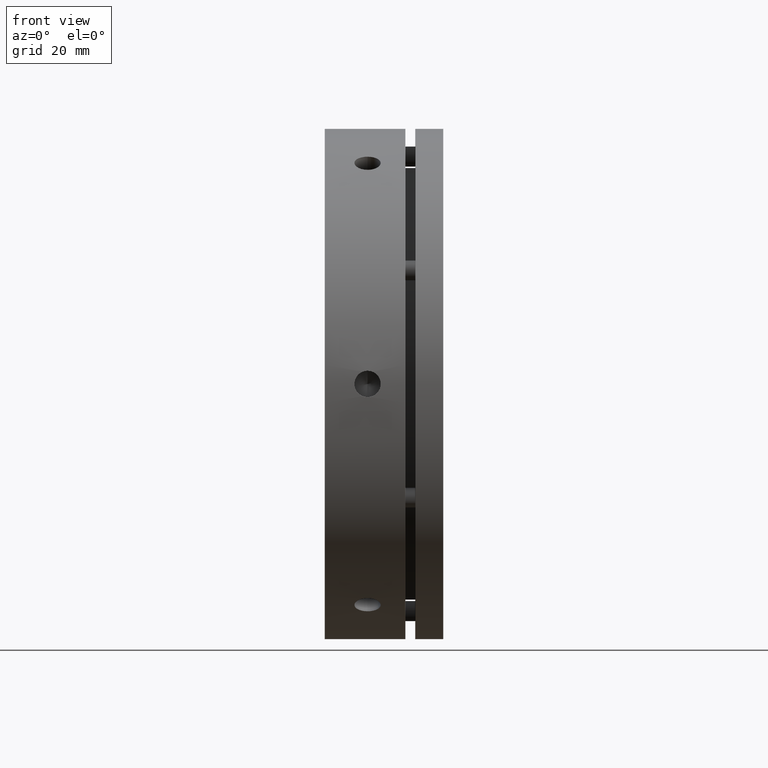
[diagram: clean part render]
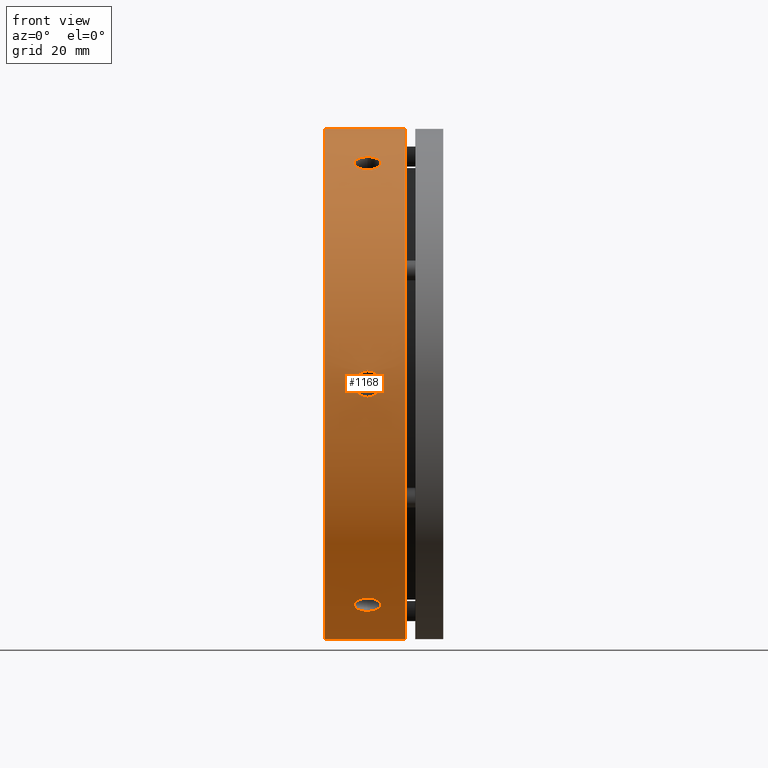
[diagram: same view with one face highlighted and labeled with its STEP entity id]
A machine part, front view. The second image highlights one B-rep face of the part: STEP entity #1168.
In plain terms, the highlighted cylindrical surface (partial cylindrical patch) has radius 77.5 mm, axis along (1, 0, 0).
Its self-contained STEP definition (entity closure, byte-faithful):
#1168 = ADVANCED_FACE ( 'NONE', ( #1421, #1425, #1422, #1424 ), #1429, .T. ) ;
#1198 = AXIS2_PLACEMENT_3D ( 'NONE', #2739, #2740, #2741 ) ;
#1217 = AXIS2_PLACEMENT_3D ( 'NONE', #2637, #2638, #2639 ) ;
#1421 = FACE_OUTER_BOUND ( 'NONE', #3070, .T. ) ;
#1422 = FACE_BOUND ( 'NONE', #3060, .T. ) ;
#1424 = FACE_BOUND ( 'NONE', #3059, .T. ) ;
#1425 = FACE_BOUND ( 'NONE', #3072, .T. ) ;
#1429 = CYLINDRICAL_SURFACE ( 'NONE', #3290, 77.50000000000000000 ) ;
#1465 = LINE ( 'NONE', #2215, #1471 ) ;
#1471 = VECTOR ( 'NONE', #2220, 1000.000000000000000 ) ;
#1488 = LINE ( 'NONE', #2416, #1493 ) ;
#1493 = VECTOR ( 'NONE', #2423, 1000.000000000000000 ) ;
#1564 = CIRCLE ( 'NONE', #1217, 77.50000000000000000 ) ;
#1566 = CIRCLE ( 'NONE', #1198, 77.50000000000000000 ) ;
#2116 = CARTESIAN_POINT ( 'NONE',  ( 17.99999999999997900, 0.0000000000000000000, 0.0000000000000000000 ) ) ;
#2119 = DIRECTION ( 'NONE',  ( 0.0000000000000000000, 0.0000000000000000000, -1.000000000000000000 ) ) ;
#2120 = DIRECTION ( 'NONE',  ( 1.000000000000000000, 0.0000000000000000000, 0.0000000000000000000 ) ) ;
#2215 = CARTESIAN_POINT ( 'NONE',  ( 17.99999999999997900, 9.491012693391988200E-015, 77.50000000000000000 ) ) ;
#2220 = DIRECTION ( 'NONE',  ( 1.000000000000000000, 0.0000000000000000000, 0.0000000000000000000 ) ) ;
#2231 = CARTESIAN_POINT ( 'NONE',  ( 12.47412065452672500, -42.14052723854261000, 65.04174495537171200 ) ) ;
#2265 = CARTESIAN_POINT ( 'NONE',  ( 12.73910725311317700, -42.16245429325571300, 65.02751300771946300 ) ) ;
#2266 = CARTESIAN_POINT ( 'NONE',  ( 12.99999999999998200, -42.16245429325569900, 65.02751300771946300 ) ) ;
#2267 = CARTESIAN_POINT ( 'NONE',  ( 11.96120104487790700, -42.05452945021988900, 65.09738224769535000 ) ) ;
#2268 = CARTESIAN_POINT ( 'NONE',  ( 11.71189815092687400, -41.99093682804811300, 65.13847784417997400 ) ) ;
#2269 = CARTESIAN_POINT ( 'NONE',  ( 11.22768725355467700, -41.82209665323108500, 65.24700991678970800 ) ) ;
#2270 = CARTESIAN_POINT ( 'NONE',  ( 10.99356871442679800, -41.71646571170560200, 65.31468060239170400 ) ) ;
#2271 = CARTESIAN_POINT ( 'NONE',  ( 10.56029209091833300, -41.47183721612002900, 65.47028128538927700 ) ) ;
#2272 = CARTESIAN_POINT ( 'NONE',  ( 10.35833856992959700, -41.33199958152867700, 65.55875766365960500 ) ) ;
#2273 = CARTESIAN_POINT ( 'NONE',  ( 9.984959030223775400, -41.01547853232911200, 65.75724611458409200 ) ) ;
#2274 = CARTESIAN_POINT ( 'NONE',  ( 9.819319480759283200, -40.84361562409804900, 65.86422407303078300 ) ) ;
#2275 = CARTESIAN_POINT ( 'NONE',  ( 9.529759583632852600, -40.47468513258463900, 66.09157899013767700 ) ) ;
#2276 = CARTESIAN_POINT ( 'NONE',  ( 9.404604368545422600, -40.27512322457941700, 66.21346687299693200 ) ) ;
#2277 = CARTESIAN_POINT ( 'NONE',  ( 9.203931984841025500, -39.86018327224135800, 66.46408455398938000 ) ) ;
#2278 = CARTESIAN_POINT ( 'NONE',  ( 9.128348040327731300, -39.64614686218604300, 66.59203194076835100 ) ) ;
#2279 = CARTESIAN_POINT ( 'NONE',  ( 9.026137293761465200, -39.20486780792430900, 66.85277869454282000 ) ) ;
#2280 = CARTESIAN_POINT ( 'NONE',  ( 8.999817849515819600, -38.97645149207274800, 66.98623781908865700 ) ) ;
#2281 = CARTESIAN_POINT ( 'NONE',  ( 9.000184071176754200, -38.51874759296578100, 67.25047146257632800 ) ) ;
#2282 = CARTESIAN_POINT ( 'NONE',  ( 9.026292328376989400, -38.29305101069692100, 67.37920728431235800 ) ) ;
#2283 = CARTESIAN_POINT ( 'NONE',  ( 9.128250717421305900, -37.84778560907653900, 67.63032200470102900 ) ) ;
#2284 = CARTESIAN_POINT ( 'NONE',  ( 9.205344744883037200, -37.62588529797396600, 67.75397689410048900 ) ) ;
#2285 = CARTESIAN_POINT ( 'NONE',  ( 9.406414312444670900, -37.20178408269380600, 67.98776279954525100 ) ) ;
#2286 = CARTESIAN_POINT ( 'NONE',  ( 9.529410230707839000, -37.00007881068615500, 68.09766090727639200 ) ) ;
#2287 = CARTESIAN_POINT ( 'NONE',  ( 9.819941704225797700, -36.61748908413062500, 68.30414882137805000 ) ) ;
#2288 = CARTESIAN_POINT ( 'NONE',  ( 9.988974339206890800, -36.43593884176203800, 68.40107003988008200 ) ) ;
#2289 = CARTESIAN_POINT ( 'NONE',  ( 10.35814702005683700, -36.10993844195761700, 68.57372942752373000 ) ) ;
#2290 = CARTESIAN_POINT ( 'NONE',  ( 10.55957674087922400, -35.96332034873422100, 68.65064433155392000 ) ) ;
#2291 = CARTESIAN_POINT ( 'NONE',  ( 10.99697182879385200, -35.70403362327412100, 68.78585145704970200 ) ) ;
#2292 = CARTESIAN_POINT ( 'NONE',  ( 11.22974603050662000, -35.59371836622739200, 68.84291653179035100 ) ) ;
#2293 = CARTESIAN_POINT ( 'NONE',  ( 11.71110829215113500, -35.41644214836304600, 68.93428442574145300 ) ) ;
#2294 = CARTESIAN_POINT ( 'NONE',  ( 11.96325164734111500, -35.34813089430364400, 68.96928500052045800 ) ) ;
#2295 = CARTESIAN_POINT ( 'NONE',  ( 12.47956449982977400, -35.25680196383074600, 69.01601659388246900 ) ) ;
#2296 = CARTESIAN_POINT ( 'NONE',  ( 12.73910707020770000, -35.23425106298019200, 69.02751300771946300 ) ) ;
#2297 = CARTESIAN_POINT ( 'NONE',  ( 12.99999999999998200, -35.23425106298019200, 69.02751300771946300 ) ) ;
#2416 = CARTESIAN_POINT ( 'NONE',  ( 17.99999999999997900, 0.0000000000000000000, -77.50000000000000000 ) ) ;
#2423 = DIRECTION ( 'NONE',  ( 1.000000000000000000, 0.0000000000000000000, 0.0000000000000000000 ) ) ;
#2430 = CARTESIAN_POINT ( 'NONE',  ( 12.73910725311318100, -35.23425106298024200, -69.02751300771939200 ) ) ;
#2435 = CARTESIAN_POINT ( 'NONE',  ( 12.47412065452672700, -35.25753981854897700, -69.01563959513386200 ) ) ;
#2440 = CARTESIAN_POINT ( 'NONE',  ( 12.99999999999998200, -35.23425106298024200, -69.02751300771942100 ) ) ;
#2441 = CARTESIAN_POINT ( 'NONE',  ( 11.96120104487790700, -35.34872202126037200, -68.96898197193891600 ) ) ;
#2442 = CARTESIAN_POINT ( 'NONE',  ( 11.71189815092687400, -35.41610816288564200, -68.93445694388721300 ) ) ;
#2443 = CARTESIAN_POINT ( 'NONE',  ( 11.22768725355467700, -35.59451978229954200, -68.84250309962111200 ) ) ;
#2444 = CARTESIAN_POINT ( 'NONE',  ( 10.99356871442679800, -35.70593978588512800, -68.78485936363537700 ) ) ;
#2445 = CARTESIAN_POINT ( 'NONE',  ( 10.56029209091833300, -35.96300817800002400, -68.65080521346746400 ) ) ;
#2446 = CARTESIAN_POINT ( 'NONE',  ( 10.35833856992960000, -36.10954978651263800, -68.57394045864141700 ) ) ;
#2447 = CARTESIAN_POINT ( 'NONE',  ( 9.984959030223779000, -36.43970635197085500, -68.39906941466432500 ) ) ;
#2448 = CARTESIAN_POINT ( 'NONE',  ( 9.819319480759290300, -36.61828343574621400, -68.30372074939131700 ) ) ;
#2449 = CARTESIAN_POINT ( 'NONE',  ( 9.529759583632857900, -36.99964381539278700, -68.09789503006344100 ) ) ;
#2450 = CARTESIAN_POINT ( 'NONE',  ( 9.404604368545435000, -37.20498277236500700, -67.98601328953287700 ) ) ;
#2451 = CARTESIAN_POINT ( 'NONE',  ( 9.203931984841032600, -37.62949402691103300, -67.75197359025924000 ) ) ;
#2452 = CARTESIAN_POINT ( 'NONE',  ( 9.128348040327733100, -37.84731791923712800, -67.63058631520597400 ) ) ;
#2453 = CARTESIAN_POINT ( 'NONE',  ( 9.026137293761465200, -38.29377075909100400, -67.37880082094456200 ) ) ;
#2454 = CARTESIAN_POINT ( 'NONE',  ( 8.999817849515819600, -38.52355790924033800, -67.24771605105121400 ) ) ;
#2455 = CARTESIAN_POINT ( 'NONE',  ( 9.000184071176754200, -38.98124290658866900, -66.98344966875723100 ) ) ;
#2456 = CARTESIAN_POINT ( 'NONE',  ( 9.026292328376989400, -39.20557968972355700, -66.85235860583306100 ) ) ;
#2457 = CARTESIAN_POINT ( 'NONE',  ( 9.128250717421304100, -39.64568411765453200, -66.59230481679787800 ) ) ;
#2458 = CARTESIAN_POINT ( 'NONE',  ( 9.205344744883033700, -39.86372254872792800, -66.46196095497511200 ) ) ;
#2459 = CARTESIAN_POINT ( 'NONE',  ( 9.406414312444670900, -40.27823768952992400, -66.21157148148900300 ) ) ;
#2460 = CARTESIAN_POINT ( 'NONE',  ( 9.529410230707835400, -40.47426487865675400, -66.09183864571871000 ) ) ;
#2461 = CARTESIAN_POINT ( 'NONE',  ( 9.819941704225795900, -40.84438352112102400, -65.86375018034550500 ) ) ;
#2462 = CARTESIAN_POINT ( 'NONE',  ( 9.988974339206892600, -41.01909487969381700, -65.75498366764209400 ) ) ;
#2463 = CARTESIAN_POINT ( 'NONE',  ( 10.35814702005684400, -41.33162249549729200, -65.55898873358944500 ) ) ;
#2464 = CARTESIAN_POINT ( 'NONE',  ( 10.55957674087922600, -41.47154180292877600, -65.47047119221863900 ) ) ;
#2465 = CARTESIAN_POINT ( 'NONE',  ( 10.99697182879386000, -41.71827797111085100, -65.31352586385398200 ) ) ;
#2466 = CARTESIAN_POINT ( 'NONE',  ( 11.22974603050662000, -41.82285540402845900, -65.24652258619684600 ) ) ;
#2467 = CARTESIAN_POINT ( 'NONE',  ( 11.71110829215113500, -41.99062043021255900, -65.13868082501501500 ) ) ;
#2468 = CARTESIAN_POINT ( 'NONE',  ( 11.96325164734111500, -42.05508744414796500, -65.09702183102473300 ) ) ;
#2469 = CARTESIAN_POINT ( 'NONE',  ( 12.47956449982977400, -42.14122265639522900, -65.04129445381575200 ) ) ;
#2470 = CARTESIAN_POINT ( 'NONE',  ( 12.73910707020770000, -42.16245429325574200, -65.02751300771943500 ) ) ;
#2471 = CARTESIAN_POINT ( 'NONE',  ( 12.99999999999998200, -42.16245429325574900, -65.02751300771942100 ) ) ;
#2571 = CARTESIAN_POINT ( 'NONE',  ( 12.47412065452672900, -77.39806705709158100, -3.973894639762132600 ) ) ;
#2572 = CARTESIAN_POINT ( 'NONE',  ( 12.73910725311318300, -77.39670535623594100, -3.999999999999970700 ) ) ;
#2576 = CARTESIAN_POINT ( 'NONE',  ( 12.99999999999998200, -77.39670535623592700, -3.999999999999971600 ) ) ;
#2577 = CARTESIAN_POINT ( 'NONE',  ( 11.96120104487791400, -77.40325147148024600, -3.871599724243569400 ) ) ;
#2578 = CARTESIAN_POINT ( 'NONE',  ( 11.71189815092688100, -77.40704499093375500, -3.795979099707231800 ) ) ;
#2579 = CARTESIAN_POINT ( 'NONE',  ( 11.22768725355468800, -77.41661643553061400, -3.595493182831421400 ) ) ;
#2580 = CARTESIAN_POINT ( 'NONE',  ( 10.99356871442680500, -77.42240549759071700, -3.470178761243680300 ) ) ;
#2581 = CARTESIAN_POINT ( 'NONE',  ( 10.56029209091834200, -77.43484539412003200, -3.180523928078211200 ) ) ;
#2582 = CARTESIAN_POINT ( 'NONE',  ( 10.35833856992960000, -77.44154936804127900, -3.015182794981817100 ) ) ;
#2583 = CARTESIAN_POINT ( 'NONE',  ( 9.984959030223782500, -77.45518488429996800, -2.641823300080240200 ) ) ;
#2584 = CARTESIAN_POINT ( 'NONE',  ( 9.819319480759293800, -77.46189905984424200, -2.439496676360537900 ) ) ;
#2585 = CARTESIAN_POINT ( 'NONE',  ( 9.529759583632861500, -77.47432894797741200, -2.006316039925792900 ) ) ;
#2586 = CARTESIAN_POINT ( 'NONE',  ( 9.404604368545433200, -77.48010599694441700, -1.772546416535958100 ) ) ;
#2587 = CARTESIAN_POINT ( 'NONE',  ( 9.203931984841032600, -77.48967729915239000, -1.287889036269877400 ) ) ;
#2588 = CARTESIAN_POINT ( 'NONE',  ( 9.128348040327734800, -77.49346478142314300, -1.038554374437657300 ) ) ;
#2589 = CARTESIAN_POINT ( 'NONE',  ( 9.026137293761467000, -77.49863856701527700, -0.5260221264017971300 ) ) ;
#2590 = CARTESIAN_POINT ( 'NONE',  ( 8.999817849515819600, -77.50000940131305100, -0.2614782319625558200 ) ) ;
#2591 = CARTESIAN_POINT ( 'NONE',  ( 9.000184071176754200, -77.49999049955442800, 0.2670217938191034000 ) ) ;
#2592 = CARTESIAN_POINT ( 'NONE',  ( 9.026292328376985800, -77.49863070042047800, 0.5268486784792756300 ) ) ;
#2593 = CARTESIAN_POINT ( 'NONE',  ( 9.128250717421302300, -77.49346972673107800, 1.038017187903124600 ) ) ;
#2594 = CARTESIAN_POINT ( 'NONE',  ( 9.205344744883031900, -77.48960784670190100, 1.292015939125365800 ) ) ;
#2595 = CARTESIAN_POINT ( 'NONE',  ( 9.406414312444663800, -77.48002177222369400, 1.776191318056224300 ) ) ;
#2596 = CARTESIAN_POINT ( 'NONE',  ( 9.529410230707833700, -77.47434368934288800, 2.005822261557659300 ) ) ;
#2597 = CARTESIAN_POINT ( 'NONE',  ( 9.819941704225788800, -77.46187260525161400, 2.440398641032524500 ) ) ;
#2598 = CARTESIAN_POINT ( 'NONE',  ( 9.988974339206889000, -77.45503372145583400, 2.646086372237971900 ) ) ;
#2599 = CARTESIAN_POINT ( 'NONE',  ( 10.35814702005684200, -77.44156093745486700, 3.014740693934311500 ) ) ;
#2600 = CARTESIAN_POINT ( 'NONE',  ( 10.55957674087922400, -77.43486215166298300, 3.180173139335296600 ) ) ;
#2601 = CARTESIAN_POINT ( 'NONE',  ( 10.99697182879385500, -77.42231159438495100, 3.472325593195713100 ) ) ;
#2602 = CARTESIAN_POINT ( 'NONE',  ( 11.22974603050661800, -77.41657377025582300, 3.596393945593504300 ) ) ;
#2603 = CARTESIAN_POINT ( 'NONE',  ( 11.71110829215114000, -77.40706257857560500, 3.795603600726386700 ) ) ;
#2604 = CARTESIAN_POINT ( 'NONE',  ( 11.96325164734111200, -77.40321833845160900, 3.872263169495742600 ) ) ;
#2605 = CARTESIAN_POINT ( 'NONE',  ( 12.47956449982976500, -77.39802462022598200, 3.974722140066732300 ) ) ;
#2606 = CARTESIAN_POINT ( 'NONE',  ( 12.73910707020769300, -77.39670535623592700, 4.000000000000028400 ) ) ;
#2607 = CARTESIAN_POINT ( 'NONE',  ( 12.99999999999998200, -77.39670535623592700, 4.000000000000028400 ) ) ;
#2631 = CARTESIAN_POINT ( 'NONE',  ( 12.99999999999998200, -77.39670535623592700, 4.000000000000028400 ) ) ;
#2635 = CARTESIAN_POINT ( 'NONE',  ( 12.99999999999998200, -42.16245429325574900, -65.02751300771942100 ) ) ;
#2636 = CARTESIAN_POINT ( 'NONE',  ( 13.26089292987226800, -42.16245429325575600, -65.02751300771942100 ) ) ;
#2637 = CARTESIAN_POINT ( 'NONE',  ( 24.49999999999998600, 0.0000000000000000000, 0.0000000000000000000 ) ) ;
#2638 = DIRECTION ( 'NONE',  ( -1.000000000000000000, -0.0000000000000000000, -0.0000000000000000000 ) ) ;
#2639 = DIRECTION ( 'NONE',  ( 0.0000000000000000000, 0.0000000000000000000, -1.000000000000000000 ) ) ;
#2640 = CARTESIAN_POINT ( 'NONE',  ( 13.26089292987227400, -77.39670535623594100, 4.000000000000030200 ) ) ;
#2641 = CARTESIAN_POINT ( 'NONE',  ( 13.52587971536195100, -42.14052720740028200, -65.04174497560443100 ) ) ;
#2642 = CARTESIAN_POINT ( 'NONE',  ( 14.03879966449113100, -42.05452930041032300, -65.09738234453159600 ) ) ;
#2643 = CARTESIAN_POINT ( 'NONE',  ( 14.28810271850225500, -41.99093659100455500, -65.13847799720399200 ) ) ;
#2644 = CARTESIAN_POINT ( 'NONE',  ( 14.77231391471701400, -41.82209617974568500, -65.24701022050048500 ) ) ;
#2645 = CARTESIAN_POINT ( 'NONE',  ( 15.00643256355292400, -41.71646509988134700, -65.31468099358281200 ) ) ;
#2646 = CARTESIAN_POINT ( 'NONE',  ( 15.43970936613349200, -41.47183628374158800, -65.47028187641808500 ) ) ;
#2647 = CARTESIAN_POINT ( 'NONE',  ( 15.64166295691366300, -41.33199846492350100, -65.55875836834924500 ) ) ;
#2648 = CARTESIAN_POINT ( 'NONE',  ( 16.01504258551264600, -41.01547698490730900, -65.75724708048974800 ) ) ;
#2649 = CARTESIAN_POINT ( 'NONE',  ( 16.18068208691811800, -40.84361390348159700, -65.86422514085423100 ) ) ;
#2650 = CARTESIAN_POINT ( 'NONE',  ( 16.47024189506981500, -40.47468297178192400, -66.09158031425454300 ) ) ;
#2651 = CARTESIAN_POINT ( 'NONE',  ( 16.59539703815418900, -40.27512080656880800, -66.21346834461994000 ) ) ;
#2652 = CARTESIAN_POINT ( 'NONE',  ( 16.79606914192075400, -39.86018045168556500, -66.46408624638392800 ) ) ;
#2653 = CARTESIAN_POINT ( 'NONE',  ( 16.87165291924492600, -39.64614383254035300, -66.59203374544998200 ) ) ;
#2654 = CARTESIAN_POINT ( 'NONE',  ( 16.97386325212666200, -39.20486433795979800, -66.85278073040638000 ) ) ;
#2655 = CARTESIAN_POINT ( 'NONE',  ( 17.00018244083871000, -38.97644744696987800, -66.98624017183425400 ) ) ;
#2656 = CARTESIAN_POINT ( 'NONE',  ( 16.99981563230442900, -38.51874394020425300, -67.25047355382741900 ) ) ;
#2657 = CARTESIAN_POINT ( 'NONE',  ( 16.97370713210562700, -38.29304754797724500, -67.37920925141179400 ) ) ;
#2658 = CARTESIAN_POINT ( 'NONE',  ( 16.87174832165906200, -37.84778251921142800, -67.63032373303894900 ) ) ;
#2659 = CARTESIAN_POINT ( 'NONE',  ( 16.79465410724173300, -37.62588238673836100, -67.75397850981609300 ) ) ;
#2660 = CARTESIAN_POINT ( 'NONE',  ( 16.59358429917090700, -37.20178164439030900, -67.98776413276429800 ) ) ;
#2661 = CARTESIAN_POINT ( 'NONE',  ( 16.47058829809760600, -37.00007659215611300, -68.09766211192449200 ) ) ;
#2662 = CARTESIAN_POINT ( 'NONE',  ( 16.18005671303837900, -36.61748728106032800, -68.30414978723210600 ) ) ;
#2663 = CARTESIAN_POINT ( 'NONE',  ( 16.01102407456108500, -36.43593726409518000, -68.40107087963613700 ) ) ;
#2664 = CARTESIAN_POINT ( 'NONE',  ( 15.64185146172021300, -36.10993727821642800, -68.57373003969786400 ) ) ;
#2665 = CARTESIAN_POINT ( 'NONE',  ( 15.44042179986997700, -35.96331936817099300, -68.65064484483843900 ) ) ;
#2666 = CARTESIAN_POINT ( 'NONE',  ( 15.00302687184294100, -35.70403296853867700, -68.78585179650468700 ) ) ;
#2667 = CARTESIAN_POINT ( 'NONE',  ( 14.77025281606037800, -35.59371787302412600, -68.84291678659349100 ) ) ;
#2668 = CARTESIAN_POINT ( 'NONE',  ( 14.28889083734121500, -35.41644189618937600, -68.93428455510444100 ) ) ;
#2669 = CARTESIAN_POINT ( 'NONE',  ( 14.03674763098913100, -35.34813073360137300, -68.96928508282951500 ) ) ;
#2670 = CARTESIAN_POINT ( 'NONE',  ( 13.52043513639289400, -35.25680193253192100, -69.01601660981741300 ) ) ;
#2671 = CARTESIAN_POINT ( 'NONE',  ( 13.26089274696677700, -35.23425106298024200, -69.02751300771943500 ) ) ;
#2672 = CARTESIAN_POINT ( 'NONE',  ( 12.99999999999998200, -35.23425106298024200, -69.02751300771942100 ) ) ;
#2673 = CARTESIAN_POINT ( 'NONE',  ( 13.26089292987226800, -35.23425106298019900, 69.02751300771944900 ) ) ;
#2674 = CARTESIAN_POINT ( 'NONE',  ( 12.99999999999998200, -35.23425106298019200, 69.02751300771946300 ) ) ;
#2675 = CARTESIAN_POINT ( 'NONE',  ( 13.52587971536195600, -77.39806705904244700, 3.973894602675738700 ) ) ;
#2676 = CARTESIAN_POINT ( 'NONE',  ( 14.03879966449113900, -77.40325148043814400, 3.871599546086554000 ) ) ;
#2677 = CARTESIAN_POINT ( 'NONE',  ( 14.28810271850225500, -77.40704500493461600, 3.795978817909481300 ) ) ;
#2678 = CARTESIAN_POINT ( 'NONE',  ( 14.77231391471701500, -77.41661646180914100, 3.595492620925645700 ) ) ;
#2679 = CARTESIAN_POINT ( 'NONE',  ( 15.00643256355292000, -77.42240553046001100, 3.470178035792757900 ) ) ;
#2680 = CARTESIAN_POINT ( 'NONE',  ( 15.43970936613348900, -77.43484543977680800, 3.180522825100384300 ) ) ;
#2681 = CARTESIAN_POINT ( 'NONE',  ( 15.64166295691366300, -77.44154942001785000, 3.015181475628540200 ) ) ;
#2682 = CARTESIAN_POINT ( 'NONE',  ( 16.01504258551263900, -77.45518494708787200, 2.641821477020834600 ) ) ;
#2683 = CARTESIAN_POINT ( 'NONE',  ( 16.18068208691812200, -77.46189912429825600, 2.439494652351226600 ) ) ;
#2684 = CARTESIAN_POINT ( 'NONE',  ( 16.47024189506982900, -77.47432901429489500, 2.006313506557287700 ) ) ;
#2685 = CARTESIAN_POINT ( 'NONE',  ( 16.59539703815418900, -77.48010606240202900, 1.772543586665822300 ) ) ;
#2686 = CARTESIAN_POINT ( 'NONE',  ( 16.79606914192075400, -77.48967735453119600, 1.287885747399599500 ) ) ;
#2687 = CARTESIAN_POINT ( 'NONE',  ( 16.87165291924493400, -77.49346482950046800, 1.038550848346689200 ) ) ;
#2688 = CARTESIAN_POINT ( 'NONE',  ( 16.97386325212666200, -77.49863859514262300, 0.5260181033925615000 ) ) ;
#2689 = CARTESIAN_POINT ( 'NONE',  ( 17.00018244083871400, -77.50000941629910800, 0.2614735524279013800 ) ) ;
#2690 = CARTESIAN_POINT ( 'NONE',  ( 16.99981563230442900, -77.49999048425023300, -0.2670260028289403500 ) ) ;
#2691 = CARTESIAN_POINT ( 'NONE',  ( 16.97370713210562000, -77.49863067261871700, -0.5268526608321991700 ) ) ;
#2692 = CARTESIAN_POINT ( 'NONE',  ( 16.87174832165906200, -77.49346967858308200, -1.038020727973816300 ) ) ;
#2693 = CARTESIAN_POINT ( 'NONE',  ( 16.79465410724172300, -77.48960779033484400, -1.292019268187177200 ) ) ;
#2694 = CARTESIAN_POINT ( 'NONE',  ( 16.59358429917090700, -77.48002170767352900, -1.776194096298529900 ) ) ;
#2695 = CARTESIAN_POINT ( 'NONE',  ( 16.47058829809760600, -77.47434362333375200, -2.005824785185097400 ) ) ;
#2696 = CARTESIAN_POINT ( 'NONE',  ( 16.18005671303837900, -77.46187254017063100, -2.440400685464256800 ) ) ;
#2697 = CARTESIAN_POINT ( 'NONE',  ( 16.01102407456107800, -77.45503365987248400, -2.646088158415575100 ) ) ;
#2698 = CARTESIAN_POINT ( 'NONE',  ( 15.64185146172021300, -77.44156088574266100, -3.014742007850810700 ) ) ;
#2699 = CARTESIAN_POINT ( 'NONE',  ( 15.44042179986997400, -77.43486210589881600, -3.180174245170227700 ) ) ;
#2700 = CARTESIAN_POINT ( 'NONE',  ( 15.00302687184294100, -77.42231156099387600, -3.472326329940739000 ) ) ;
#2701 = CARTESIAN_POINT ( 'NONE',  ( 14.77025281606037600, -77.41657374432018900, -3.596394500121643300 ) ) ;
#2702 = CARTESIAN_POINT ( 'NONE',  ( 14.28889083734121500, -77.40706256452043000, -3.795603883796721900 ) ) ;
#2703 = CARTESIAN_POINT ( 'NONE',  ( 14.03674763098912900, -77.40321832938215600, -3.872263349822501900 ) ) ;
#2704 = CARTESIAN_POINT ( 'NONE',  ( 13.52043513639289300, -77.39802461837661000, -3.974722175139775900 ) ) ;
#2705 = CARTESIAN_POINT ( 'NONE',  ( 13.26089274696677100, -77.39670535623592700, -3.999999999999972500 ) ) ;
#2706 = CARTESIAN_POINT ( 'NONE',  ( 12.99999999999998200, -77.39670535623592700, -3.999999999999971600 ) ) ;
#2707 = CARTESIAN_POINT ( 'NONE',  ( 13.52587971536195400, -35.25753985164217900, 69.01563957828017200 ) ) ;
#2708 = CARTESIAN_POINT ( 'NONE',  ( 14.03879966449113300, -35.34872218002782100, 68.96898189061816700 ) ) ;
#2709 = CARTESIAN_POINT ( 'NONE',  ( 14.28810271850225400, -35.41610841393008300, 68.93445681511346400 ) ) ;
#2710 = CARTESIAN_POINT ( 'NONE',  ( 14.77231391471701400, -35.59452028206348500, 68.84250284142612500 ) ) ;
#2711 = CARTESIAN_POINT ( 'NONE',  ( 15.00643256355291800, -35.70594043057870700, 68.78485902937558200 ) ) ;
#2712 = CARTESIAN_POINT ( 'NONE',  ( 15.43970936613348500, -35.96300915603522700, 68.65080470151851000 ) ) ;
#2713 = CARTESIAN_POINT ( 'NONE',  ( 15.64166295691366000, -36.10955095509437000, 68.57393984397779700 ) ) ;
#2714 = CARTESIAN_POINT ( 'NONE',  ( 16.01504258551264200, -36.43970796218057700, 68.39906855751058900 ) ) ;
#2715 = CARTESIAN_POINT ( 'NONE',  ( 16.18068208691812200, -36.61828522081668100, 68.30371979320547400 ) ) ;
#2716 = CARTESIAN_POINT ( 'NONE',  ( 16.47024189506982600, -36.99964604251300000, 68.09789382081183400 ) ) ;
#2717 = CARTESIAN_POINT ( 'NONE',  ( 16.59539703815419300, -37.20498525583323600, 67.98601193128575900 ) ) ;
#2718 = CARTESIAN_POINT ( 'NONE',  ( 16.79606914192075700, -37.62949690284563100, 67.75197199378355600 ) ) ;
#2719 = CARTESIAN_POINT ( 'NONE',  ( 16.87165291924493400, -37.84732099696011400, 67.63058459379668400 ) ) ;
#2720 = CARTESIAN_POINT ( 'NONE',  ( 16.97386325212666200, -38.29377425718283900, 67.37879883379893900 ) ) ;
#2721 = CARTESIAN_POINT ( 'NONE',  ( 17.00018244083871400, -38.52356196932921500, 67.24771372426216900 ) ) ;
#2722 = CARTESIAN_POINT ( 'NONE',  ( 16.99981563230442900, -38.98124654404599500, 66.98344755099850500 ) ) ;
#2723 = CARTESIAN_POINT ( 'NONE',  ( 16.97370713210562700, -39.20558312464145000, 66.85235659057960300 ) ) ;
#2724 = CARTESIAN_POINT ( 'NONE',  ( 16.87174832165906200, -39.64568715937167600, 66.59230300506516200 ) ) ;
#2725 = CARTESIAN_POINT ( 'NONE',  ( 16.79465410724172600, -39.86372540359649700, 66.46195924162893200 ) ) ;
#2726 = CARTESIAN_POINT ( 'NONE',  ( 16.59358429917090700, -40.27824006328324900, 66.21157003646578700 ) ) ;
#2727 = CARTESIAN_POINT ( 'NONE',  ( 16.47058829809761000, -40.47426703117763200, 66.09183732673938000 ) ) ;
#2728 = CARTESIAN_POINT ( 'NONE',  ( 16.18005671303838300, -40.84438525911032500, 65.86374910176785100 ) ) ;
#2729 = CARTESIAN_POINT ( 'NONE',  ( 16.01102407456108900, -41.01909639577729600, 65.75498272122055700 ) ) ;
#2730 = CARTESIAN_POINT ( 'NONE',  ( 15.64185146172022000, -41.33162360752621800, 65.55898803184706500 ) ) ;
#2731 = CARTESIAN_POINT ( 'NONE',  ( 15.44042179986997400, -41.47154273772781600, 65.47047059966820400 ) ) ;
#2732 = CARTESIAN_POINT ( 'NONE',  ( 15.00302687184294300, -41.71827859245519900, 65.31352546656394500 ) ) ;
#2733 = CARTESIAN_POINT ( 'NONE',  ( 14.77025281606037600, -41.82285587129608500, 65.24652228647184400 ) ) ;
#2734 = CARTESIAN_POINT ( 'NONE',  ( 14.28889083734121000, -41.99062066833103300, 65.13868067130773900 ) ) ;
#2735 = CARTESIAN_POINT ( 'NONE',  ( 14.03674763098912600, -42.05508759578079700, 65.09702173300698300 ) ) ;
#2736 = CARTESIAN_POINT ( 'NONE',  ( 13.52043513639288900, -42.14122268584469600, 65.04129443467763800 ) ) ;
#2737 = CARTESIAN_POINT ( 'NONE',  ( 13.26089274696677700, -42.16245429325570600, 65.02751300771944900 ) ) ;
#2738 = CARTESIAN_POINT ( 'NONE',  ( 12.99999999999998200, -42.16245429325569900, 65.02751300771946300 ) ) ;
#2739 = CARTESIAN_POINT ( 'NONE',  ( -2.081668171172168500E-014, 0.0000000000000000000, 0.0000000000000000000 ) ) ;
#2740 = DIRECTION ( 'NONE',  ( 1.000000000000000000, 0.0000000000000000000, 0.0000000000000000000 ) ) ;
#2741 = DIRECTION ( 'NONE',  ( 0.0000000000000000000, 0.0000000000000000000, -1.000000000000000000 ) ) ;
#2864 = CARTESIAN_POINT ( 'NONE',  ( -2.081668171172168500E-014, 0.0000000000000000000, -77.50000000000000000 ) ) ;
#2897 = CARTESIAN_POINT ( 'NONE',  ( 12.99999999999998200, -77.39670535623592700, -3.999999999999971600 ) ) ;
#2915 = CARTESIAN_POINT ( 'NONE',  ( 12.99999999999998200, -35.23425106298019200, 69.02751300771946300 ) ) ;
#2960 = EDGE_CURVE ( 'NONE', #3778, #3757, #1465, .T. ) ;
#2966 = EDGE_CURVE ( 'NONE', #3774, #3709, #4191, .T. ) ;
#2979 = EDGE_CURVE ( 'NONE', #3658, #3730, #1488, .T. ) ;
#2986 = EDGE_CURVE ( 'NONE', #3762, #3742, #4187, .T. ) ;
#3017 = EDGE_CURVE ( 'NONE', #3691, #3755, #4200, .T. ) ;
#3028 = EDGE_CURVE ( 'NONE', #3730, #3757, #1564, .T. ) ;
#3029 = EDGE_CURVE ( 'NONE', #3742, #3762, #4193, .T. ) ;
#3030 = EDGE_CURVE ( 'NONE', #3755, #3691, #4192, .T. ) ;
#3031 = EDGE_CURVE ( 'NONE', #3709, #3774, #4190, .T. ) ;
#3032 = EDGE_CURVE ( 'NONE', #3778, #3658, #1566, .T. ) ;
#3059 = EDGE_LOOP ( 'NONE', ( #4268, #4267 ) ) ;
#3060 = EDGE_LOOP ( 'NONE', ( #4271, #4269 ) ) ;
#3070 = EDGE_LOOP ( 'NONE', ( #4205, #4234, #4215, #4236 ) ) ;
#3072 = EDGE_LOOP ( 'NONE', ( #4260, #4209 ) ) ;
#3290 = AXIS2_PLACEMENT_3D ( 'NONE', #2116, #2120, #2119 ) ;
#3658 = VERTEX_POINT ( 'NONE', #2864 ) ;
#3691 = VERTEX_POINT ( 'NONE', #2897 ) ;
#3709 = VERTEX_POINT ( 'NONE', #2915 ) ;
#3730 = VERTEX_POINT ( 'NONE', #4367 ) ;
#3742 = VERTEX_POINT ( 'NONE', #4379 ) ;
#3755 = VERTEX_POINT ( 'NONE', #4392 ) ;
#3757 = VERTEX_POINT ( 'NONE', #4394 ) ;
#3762 = VERTEX_POINT ( 'NONE', #4399 ) ;
#3774 = VERTEX_POINT ( 'NONE', #4411 ) ;
#3778 = VERTEX_POINT ( 'NONE', #4415 ) ;
#4187 = B_SPLINE_CURVE_WITH_KNOTS ( 'NONE', 3,
 ( #2440, #2430, #2435, #2441, #2442, #2443, #2444, #2445, #2446, #2447, #2448, #2449, #2450, #2451, #2452, #2453, #2454, #2455, #2456, #2457, #2458, #2459, #2460, #2461, #2462, #2463, #2464, #2465, #2466, #2467, #2468, #2469, #2470, #2471 ),
 .UNSPECIFIED., .F., .F.,
 ( 4, 2, 2, 2, 2, 2, 2, 2, 2, 2, 2, 2, 2, 2, 2, 2, 4 ),
 ( 0.01876066263821055100, 0.01954224305773369400, 0.02032382347725683600, 0.02110540389677997800, 0.02188698431630312100, 0.02266856473582626300, 0.02345014515534940600, 0.02423172557487254800, 0.02501330599439569000, 0.02579488641391883300, 0.02657646683344197500, 0.02735804725296511800, 0.02813962767248826000, 0.02892120809201140200, 0.02970278851153454500, 0.03048436893105768700, 0.03126594935058082900 ),
 .UNSPECIFIED. ) ;
#4190 = B_SPLINE_CURVE_WITH_KNOTS ( 'NONE', 3,
 ( #2674, #2673, #2707, #2708, #2709, #2710, #2711, #2712, #2713, #2714, #2715, #2716, #2717, #2718, #2719, #2720, #2721, #2722, #2723, #2724, #2725, #2726, #2727, #2728, #2729, #2730, #2731, #2732, #2733, #2734, #2735, #2736, #2737, #2738 ),
 .UNSPECIFIED., .F., .F.,
 ( 4, 2, 2, 2, 2, 2, 2, 2, 2, 2, 2, 2, 2, 2, 2, 2, 4 ),
 ( 0.006255375922005717100, 0.007036956341768517600, 0.007818536761531318100, 0.008600117181294119500, 0.009381697601056920900, 0.01016327802081972200, 0.01094485844058252200, 0.01172643886034532300, 0.01250801928010812300, 0.01328959969987092400, 0.01407118011963372600, 0.01485276053939652700, 0.01563434095915932500, 0.01641592137892213000, 0.01719750179868492800, 0.01797908221844772900, 0.01876066263821053000 ),
 .UNSPECIFIED. ) ;
#4191 = B_SPLINE_CURVE_WITH_KNOTS ( 'NONE', 3,
 ( #2266, #2265, #2231, #2267, #2268, #2269, #2270, #2271, #2272, #2273, #2274, #2275, #2276, #2277, #2278, #2279, #2280, #2281, #2282, #2283, #2284, #2285, #2286, #2287, #2288, #2289, #2290, #2291, #2292, #2293, #2294, #2295, #2296, #2297 ),
 .UNSPECIFIED., .F., .F.,
 ( 4, 2, 2, 2, 2, 2, 2, 2, 2, 2, 2, 2, 2, 2, 2, 2, 4 ),
 ( 0.01876066263821053000, 0.01954224305773367300, 0.02032382347725681500, 0.02110540389677995800, 0.02188698431630310000, 0.02266856473582624200, 0.02345014515534938100, 0.02423172557487252400, 0.02501330599439566600, 0.02579488641391880800, 0.02657646683344195100, 0.02735804725296509000, 0.02813962767248823200, 0.02892120809201137500, 0.02970278851153451700, 0.03048436893105765900, 0.03126594935058080200 ),
 .UNSPECIFIED. ) ;
#4192 = B_SPLINE_CURVE_WITH_KNOTS ( 'NONE', 3,
 ( #2631, #2640, #2675, #2676, #2677, #2678, #2679, #2680, #2681, #2682, #2683, #2684, #2685, #2686, #2687, #2688, #2689, #2690, #2691, #2692, #2693, #2694, #2695, #2696, #2697, #2698, #2699, #2700, #2701, #2702, #2703, #2704, #2705, #2706 ),
 .UNSPECIFIED., .F., .F.,
 ( 4, 2, 2, 2, 2, 2, 2, 2, 2, 2, 2, 2, 2, 2, 2, 2, 4 ),
 ( 0.006255375922005734400, 0.007036956341768536700, 0.007818536761531338900, 0.008600117181294140300, 0.009381697601056941700, 0.01016327802081974300, 0.01094485844058254400, 0.01172643886034534800, 0.01250801928010815100, 0.01328959969987095200, 0.01407118011963375300, 0.01485276053939655500, 0.01563434095915936000, 0.01641592137892216100, 0.01719750179868496200, 0.01797908221844776400, 0.01876066263821056500 ),
 .UNSPECIFIED. ) ;
#4193 = B_SPLINE_CURVE_WITH_KNOTS ( 'NONE', 3,
 ( #2635, #2636, #2641, #2642, #2643, #2644, #2645, #2646, #2647, #2648, #2649, #2650, #2651, #2652, #2653, #2654, #2655, #2656, #2657, #2658, #2659, #2660, #2661, #2662, #2663, #2664, #2665, #2666, #2667, #2668, #2669, #2670, #2671, #2672 ),
 .UNSPECIFIED., .F., .F.,
 ( 4, 2, 2, 2, 2, 2, 2, 2, 2, 2, 2, 2, 2, 2, 2, 2, 4 ),
 ( 0.006255375922005732700, 0.007036956341768534100, 0.007818536761531335400, 0.008600117181294136800, 0.009381697601056938200, 0.01016327802081974000, 0.01094485844058253900, 0.01172643886034534100, 0.01250801928010814200, 0.01328959969987094300, 0.01407118011963374500, 0.01485276053939654600, 0.01563434095915934600, 0.01641592137892214700, 0.01719750179868494800, 0.01797908221844775000, 0.01876066263821055100 ),
 .UNSPECIFIED. ) ;
#4200 = B_SPLINE_CURVE_WITH_KNOTS ( 'NONE', 3,
 ( #2576, #2572, #2571, #2577, #2578, #2579, #2580, #2581, #2582, #2583, #2584, #2585, #2586, #2587, #2588, #2589, #2590, #2591, #2592, #2593, #2594, #2595, #2596, #2597, #2598, #2599, #2600, #2601, #2602, #2603, #2604, #2605, #2606, #2607 ),
 .UNSPECIFIED., .F., .F.,
 ( 4, 2, 2, 2, 2, 2, 2, 2, 2, 2, 2, 2, 2, 2, 2, 2, 4 ),
 ( 0.01876066263821056500, 0.01954224305773370800, 0.02032382347725685000, 0.02110540389677999200, 0.02188698431630313500, 0.02266856473582627700, 0.02345014515534941900, 0.02423172557487256500, 0.02501330599439570800, 0.02579488641391885000, 0.02657646683344199200, 0.02735804725296513800, 0.02813962767248828100, 0.02892120809201142300, 0.02970278851153456600, 0.03048436893105770800, 0.03126594935058085000 ),
 .UNSPECIFIED. ) ;
#4205 = ORIENTED_EDGE ( 'NONE', *, *, #2960, .F. ) ;
#4209 = ORIENTED_EDGE ( 'NONE', *, *, #3031, .T. ) ;
#4215 = ORIENTED_EDGE ( 'NONE', *, *, #2979, .T. ) ;
#4234 = ORIENTED_EDGE ( 'NONE', *, *, #3032, .T. ) ;
#4236 = ORIENTED_EDGE ( 'NONE', *, *, #3028, .T. ) ;
#4260 = ORIENTED_EDGE ( 'NONE', *, *, #2966, .T. ) ;
#4267 = ORIENTED_EDGE ( 'NONE', *, *, #3029, .T. ) ;
#4268 = ORIENTED_EDGE ( 'NONE', *, *, #2986, .T. ) ;
#4269 = ORIENTED_EDGE ( 'NONE', *, *, #3030, .T. ) ;
#4271 = ORIENTED_EDGE ( 'NONE', *, *, #3017, .T. ) ;
#4367 = CARTESIAN_POINT ( 'NONE',  ( 24.49999999999998600, 0.0000000000000000000, -77.50000000000000000 ) ) ;
#4379 = CARTESIAN_POINT ( 'NONE',  ( 12.99999999999998200, -42.16245429325574900, -65.02751300771942100 ) ) ;
#4392 = CARTESIAN_POINT ( 'NONE',  ( 12.99999999999998200, -77.39670535623592700, 4.000000000000028400 ) ) ;
#4394 = CARTESIAN_POINT ( 'NONE',  ( 24.49999999999998600, 9.491012693391988200E-015, 77.50000000000000000 ) ) ;
#4399 = CARTESIAN_POINT ( 'NONE',  ( 12.99999999999998200, -35.23425106298024200, -69.02751300771942100 ) ) ;
#4411 = CARTESIAN_POINT ( 'NONE',  ( 12.99999999999998200, -42.16245429325569900, 65.02751300771946300 ) ) ;
#4415 = CARTESIAN_POINT ( 'NONE',  ( -2.081668171172168500E-014, 9.491012693391988200E-015, 77.50000000000000000 ) ) ;